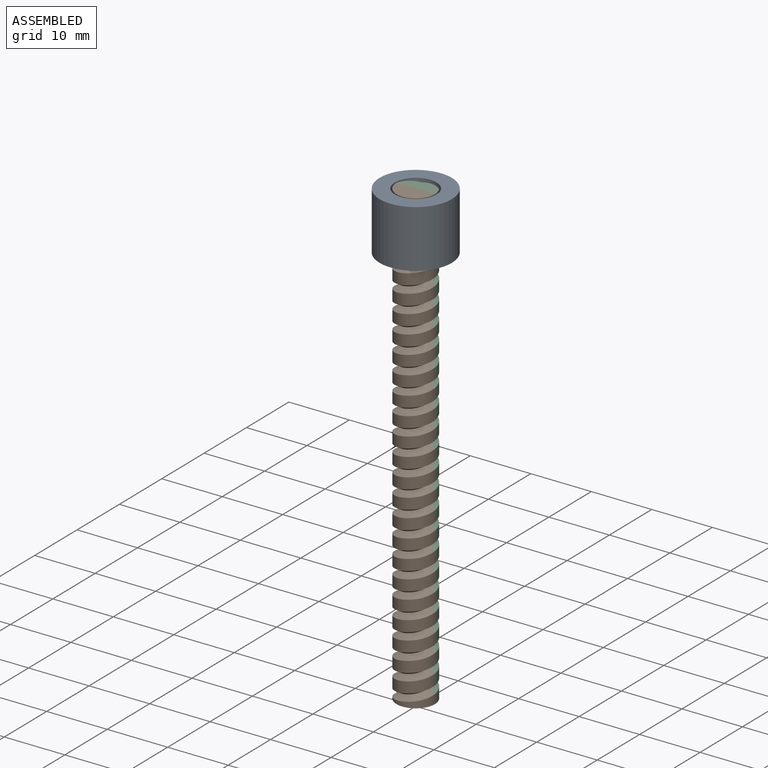
[diagram: assembled view]
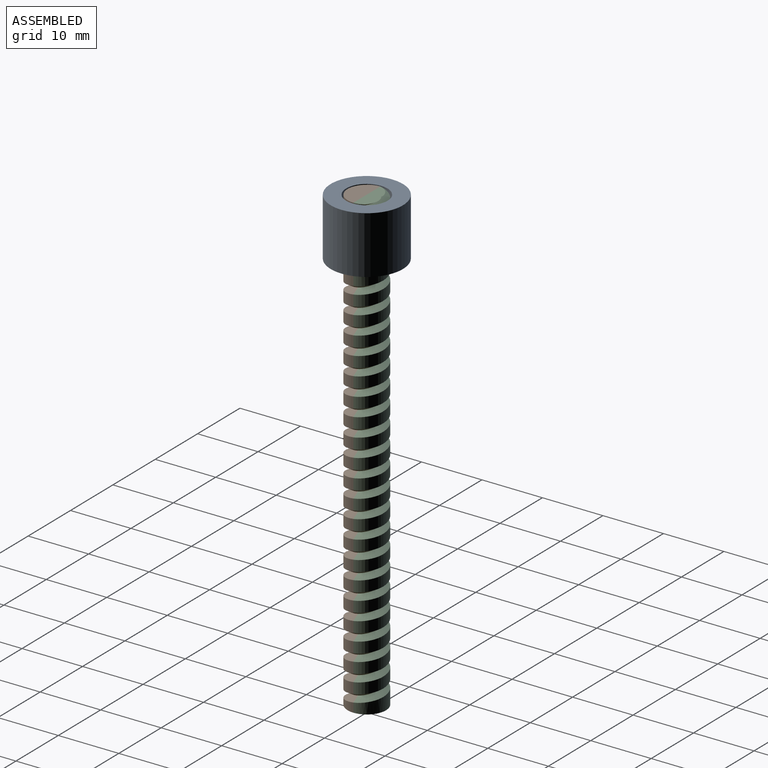
[diagram: assembled view, second angle]
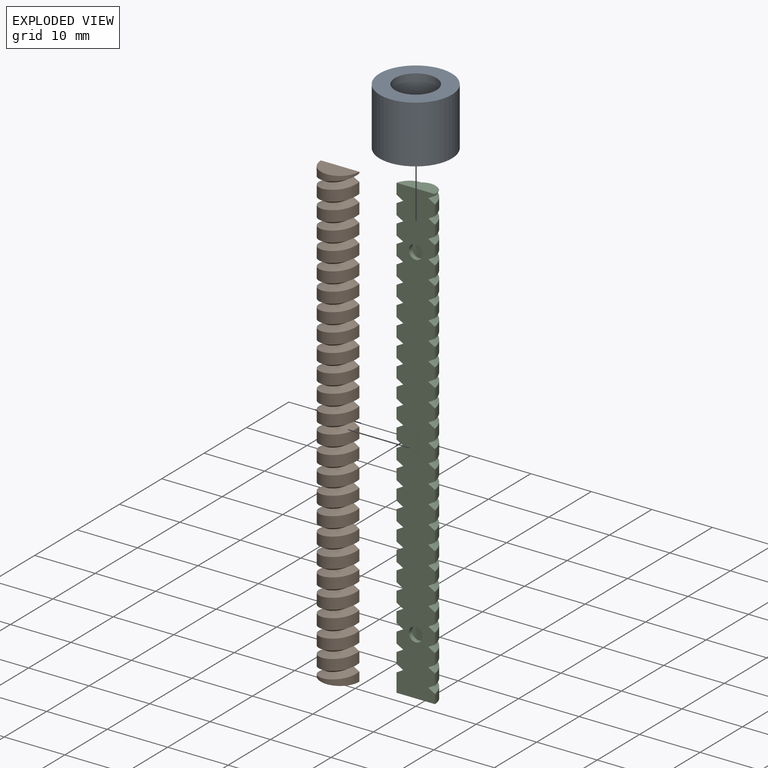
[diagram: exploded view]
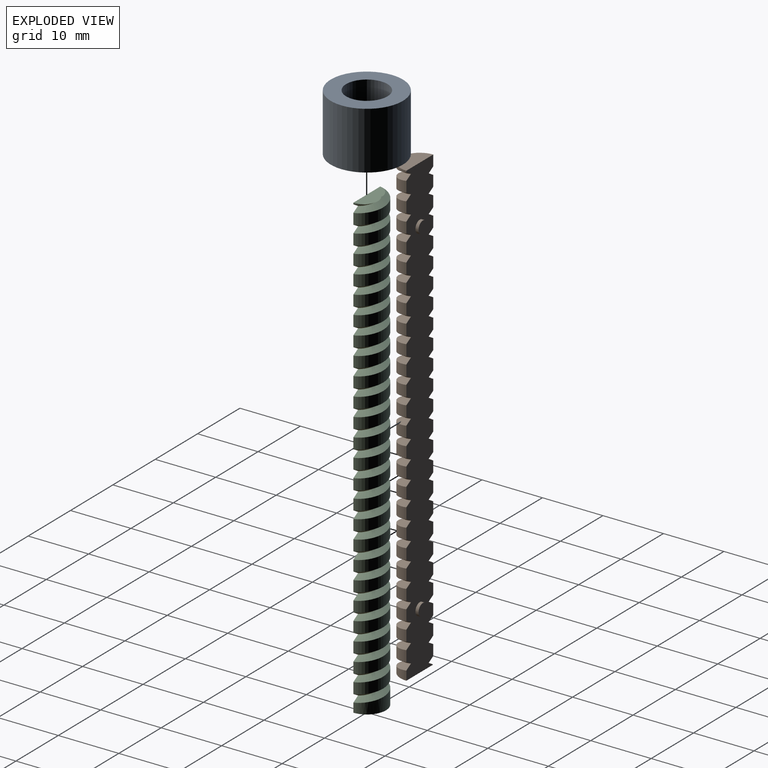
[diagram: exploded view, second angle]
ASSEMBLY  parts=3 mates=2
PART A: 4 faces, bbox 11.9x11.9x9.5 mm
  f0: cylinder r=3.43mm len=9.53mm, axis (0,0,1), area 205.2mm2, adj f2,f3
  f1: cylinder r=5.97mm len=11.94mm, axis (0,0,1), area 357.2mm2, adj f2,f3
  f2: plane 11.94x11.94mm, normal (0,0,-1), area 75mm2, adj f0,f1
  f3: plane 11.94x11.94mm, normal (0,0,1), area 75mm2, adj f0,f1
PART B: 83 faces, bbox 6.4x6.4x76.5 mm
  f0: bspline ~6.42x6.35mm, area 10.6mm2, adj f1,f75,f78
  f1: bspline ~6.42x6.35mm, area 10.6mm2, adj f0,f77,f78
  f2: bspline ~6.42x6.35mm, area 10.6mm2, adj f3,f74,f78
  f3: bspline ~6.42x6.35mm, area 10.6mm2, adj f2,f75,f78
  f4: bspline ~6.42x6.35mm, area 10.6mm2, adj f5,f73,f78
  f5: bspline ~6.42x6.35mm, area 10.6mm2, adj f4,f74,f78
  f6: bspline ~6.42x6.35mm, area 10.6mm2, adj f7,f72,f78
  f7: bspline ~6.42x6.35mm, area 10.6mm2, adj f6,f73,f78
  f8: bspline ~6.42x6.35mm, area 10.6mm2, adj f9,f71,f78
  f9: bspline ~6.42x6.35mm, area 10.6mm2, adj f8,f72,f78
  f10: bspline ~6.42x6.35mm, area 10.6mm2, adj f11,f70,f78
  f11: bspline ~6.42x6.35mm, area 10.6mm2, adj f10,f71,f78
  f12: bspline ~6.42x6.35mm, area 10.6mm2, adj f13,f69,f78
  f13: bspline ~6.42x6.35mm, area 10.6mm2, adj f12,f70,f78
  f14: bspline ~6.42x6.35mm, area 10.6mm2, adj f15,f68,f78
  f15: bspline ~6.42x6.35mm, area 10.6mm2, adj f14,f69,f78
  f16: bspline ~6.42x6.35mm, area 10.6mm2, adj f17,f67,f78
  f17: bspline ~6.42x6.35mm, area 10.6mm2, adj f16,f68,f78
  f18: bspline ~6.42x6.35mm, area 10.6mm2, adj f19,f66,f78
  f19: bspline ~6.42x6.35mm, area 10.6mm2, adj f18,f67,f78
  f20: bspline ~6.42x6.35mm, area 10.6mm2, adj f21,f65,f78
  f21: bspline ~6.42x6.35mm, area 10.6mm2, adj f20,f66,f78
  f22: bspline ~6.42x6.35mm, area 10.6mm2, adj f23,f64,f78
  f23: bspline ~6.42x6.35mm, area 10.6mm2, adj f22,f65,f78
  f24: bspline ~6.42x6.35mm, area 10.6mm2, adj f25,f63,f78
  f25: bspline ~6.42x6.35mm, area 10.6mm2, adj f24,f64,f78
  f26: bspline ~6.42x6.35mm, area 10.6mm2, adj f27,f62,f78
  f27: bspline ~6.42x6.35mm, area 10.6mm2, adj f26,f63,f78
  f28: bspline ~6.42x6.35mm, area 10.6mm2, adj f29,f61,f78
  f29: bspline ~6.42x6.35mm, area 10.6mm2, adj f28,f62,f78
  f30: bspline ~6.42x6.35mm, area 10.6mm2, adj f31,f60,f78
  f31: bspline ~6.42x6.35mm, area 10.6mm2, adj f30,f61,f78
  f32: bspline ~6.42x6.35mm, area 10.6mm2, adj f33,f59,f78
  f33: bspline ~6.42x6.35mm, area 10.6mm2, adj f32,f60,f78
  f34: bspline ~6.42x6.35mm, area 10.6mm2, adj f35,f58,f78
  f35: bspline ~6.42x6.35mm, area 10.6mm2, adj f34,f59,f78
  f36: bspline ~6.42x6.35mm, area 10.6mm2, adj f37,f57,f78
  f37: bspline ~6.42x6.35mm, area 10.6mm2, adj f36,f58,f78
  f38: bspline ~6.42x6.35mm, area 10.6mm2, adj f39,f56,f78
  f39: bspline ~6.42x6.35mm, area 10.6mm2, adj f38,f57,f78
  f40: bspline ~6.42x6.35mm, area 10.6mm2, adj f41,f55,f78
  f41: bspline ~6.42x6.35mm, area 10.6mm2, adj f40,f56,f78
  f42: bspline ~6.42x6.35mm, area 10.6mm2, adj f43,f54,f78
  f43: bspline ~6.42x6.35mm, area 10.6mm2, adj f42,f55,f78
  f44: bspline ~6.42x6.35mm, area 10.6mm2, adj f45,f53,f78
  f45: bspline ~6.42x6.35mm, area 10.6mm2, adj f44,f54,f78
  f46: bspline ~6.42x6.35mm, area 10.6mm2, adj f47,f52,f78
  f47: bspline ~6.42x6.35mm, area 10.6mm2, adj f46,f53,f78
  f48: bspline ~6.42x6.35mm, area 10.6mm2, adj f49,f51,f78
  f49: bspline ~6.42x6.35mm, area 10.6mm2, adj f48,f52,f78
  f50: plane 6.35x3.18mm, normal (0,0,1), area 15.8mm2, adj f51,f78
  f51: cylinder r=3.17mm len=6.35mm, axis (0,0,-1), area 10.1mm2, adj f48,f50,f78
  f52: cylinder r=3.17mm len=6.35mm, axis (0,0,-1), area 17.7mm2, adj f46,f49,f78
  f53: cylinder r=3.17mm len=6.35mm, axis (0,0,-1), area 17.7mm2, adj f44,f47,f78
  f54: cylinder r=3.17mm len=6.35mm, axis (0,0,-1), area 17.7mm2, adj f42,f45,f78
  f55: cylinder r=3.17mm len=6.35mm, axis (0,0,-1), area 17.7mm2, adj f40,f43,f78
  f56: cylinder r=3.17mm len=6.35mm, axis (0,0,-1), area 17.7mm2, adj f38,f41,f78
  f57: cylinder r=3.17mm len=6.35mm, axis (0,0,-1), area 17.7mm2, adj f36,f39,f78
  f58: cylinder r=3.17mm len=6.35mm, axis (0,0,-1), area 17.7mm2, adj f34,f37,f78
  f59: cylinder r=3.17mm len=6.35mm, axis (0,0,-1), area 17.7mm2, adj f32,f35,f78
  f60: cylinder r=3.17mm len=6.35mm, axis (0,0,-1), area 17.7mm2, adj f30,f33,f78
  f61: cylinder r=3.17mm len=6.35mm, axis (0,0,-1), area 17.7mm2, adj f28,f31,f78
  f62: cylinder r=3.17mm len=6.35mm, axis (0,0,-1), area 17.7mm2, adj f26,f29,f78
  f63: cylinder r=3.17mm len=6.35mm, axis (0,0,-1), area 17.7mm2, adj f24,f27,f78
  f64: cylinder r=3.17mm len=6.35mm, axis (0,0,-1), area 17.7mm2, adj f22,f25,f78
  f65: cylinder r=3.17mm len=6.35mm, axis (0,0,-1), area 17.7mm2, adj f20,f23,f78
  f66: cylinder r=3.17mm len=6.35mm, axis (0,0,-1), area 17.7mm2, adj f18,f21,f78
  f67: cylinder r=3.17mm len=6.35mm, axis (0,0,-1), area 17.7mm2, adj f16,f19,f78
  f68: cylinder r=3.17mm len=6.35mm, axis (0,0,-1), area 17.7mm2, adj f14,f17,f78
  f69: cylinder r=3.17mm len=6.35mm, axis (0,0,-1), area 17.7mm2, adj f12,f15,f78
  f70: cylinder r=3.17mm len=6.35mm, axis (0,0,-1), area 17.7mm2, adj f10,f13,f78
  f71: cylinder r=3.17mm len=6.35mm, axis (0,0,-1), area 17.7mm2, adj f8,f11,f78
  f72: cylinder r=3.17mm len=6.35mm, axis (0,0,-1), area 17.7mm2, adj f6,f9,f78
  f73: cylinder r=3.17mm len=6.35mm, axis (0,0,-1), area 17.7mm2, adj f4,f7,f78
  f74: cylinder r=3.17mm len=6.35mm, axis (0,0,-1), area 17.7mm2, adj f2,f5,f78
  f75: cylinder r=3.17mm len=6.35mm, axis (0,0,-1), area 17.7mm2, adj f0,f3,f78
  f76: plane 6.35x3.18mm, normal (0,0,-1), area 15.8mm2, adj f77,f78
  f77: cylinder r=3.17mm len=6.35mm, axis (0,0,-1), area 7.6mm2, adj f1,f76,f78
  f78: plane 76.2x6.35mm, normal (0,1,0), area 442.5mm2, adj f0,f1,f2,f3,f4,f5,f6,f7
  f79: cylinder r=1.02mm len=2.03mm, axis (0,-1,0), area 3.2mm2, adj f78,f80
  f80: plane 2.03x2.03mm, normal (0,1,0), area 3.2mm2, adj f79
  f81: cylinder r=1.02mm len=2.03mm, axis (0,-1,0), area 3.2mm2, adj f78,f82
  f82: plane 2.03x2.03mm, normal (0,1,0), area 3.2mm2, adj f81
PART C: 83 faces, bbox 6.7x6.8x77.3 mm
  f0: cylinder r=3.17mm len=6.35mm, axis (0,0,-1), area 17.7mm2, adj f28,f54,f78
  f1: cylinder r=3.17mm len=6.35mm, axis (0,0,-1), area 17.7mm2, adj f29,f55,f78
  f2: cylinder r=3.17mm len=6.35mm, axis (0,0,-1), area 17.7mm2, adj f30,f56,f78
  f3: cylinder r=3.17mm len=6.35mm, axis (0,0,-1), area 17.7mm2, adj f31,f57,f78
  f4: cylinder r=3.17mm len=6.35mm, axis (0,0,-1), area 17.7mm2, adj f32,f58,f78
  f5: cylinder r=3.17mm len=6.35mm, axis (0,0,-1), area 17.7mm2, adj f33,f59,f78
  f6: cylinder r=3.17mm len=6.35mm, axis (0,0,-1), area 17.7mm2, adj f34,f60,f78
  f7: cylinder r=3.17mm len=6.35mm, axis (0,0,-1), area 17.7mm2, adj f35,f61,f78
  f8: cylinder r=3.17mm len=6.35mm, axis (0,0,-1), area 17.7mm2, adj f36,f62,f78
  f9: cylinder r=3.17mm len=6.35mm, axis (0,0,-1), area 17.7mm2, adj f37,f63,f78
  f10: cylinder r=3.17mm len=6.35mm, axis (0,0,-1), area 17.7mm2, adj f38,f64,f78
  f11: cylinder r=3.17mm len=6.35mm, axis (0,0,-1), area 17.7mm2, adj f39,f65,f78
  f12: cylinder r=3.17mm len=6.35mm, axis (0,0,-1), area 17.7mm2, adj f40,f66,f78
  f13: cylinder r=3.17mm len=6.35mm, axis (0,0,-1), area 17.7mm2, adj f41,f67,f78
  f14: cylinder r=3.17mm len=6.35mm, axis (0,0,-1), area 17.7mm2, adj f42,f68,f78
  f15: cylinder r=3.17mm len=6.35mm, axis (0,0,-1), area 17.7mm2, adj f43,f69,f78
  f16: cylinder r=3.17mm len=6.35mm, axis (0,0,-1), area 17.7mm2, adj f44,f70,f78
  f17: cylinder r=3.17mm len=6.35mm, axis (0,0,-1), area 17.7mm2, adj f45,f71,f78
  f18: cylinder r=3.17mm len=6.35mm, axis (0,0,-1), area 17.7mm2, adj f46,f72,f78
  f19: cylinder r=3.17mm len=6.35mm, axis (0,0,-1), area 17.7mm2, adj f47,f73,f78
  f20: cylinder r=3.17mm len=6.35mm, axis (0,0,-1), area 17.7mm2, adj f48,f74,f78
  f21: cylinder r=3.17mm len=6.35mm, axis (0,0,-1), area 17.7mm2, adj f49,f75,f78
  f22: cylinder r=3.17mm len=6.35mm, axis (0,0,-1), area 17.7mm2, adj f50,f76,f78
  f23: cylinder r=3.17mm len=6.35mm, axis (0,0,-1), area 17.7mm2, adj f51,f77,f78
  f24: cylinder r=3.17mm len=6.35mm, axis (0,0,-1), area 22.8mm2, adj f27,f52,f78
  f25: cylinder r=3.17mm len=1.59mm, axis (0,0,-1), area 0.2mm2, adj f26,f53,f78
  f26: plane 6.73x2.83mm, normal (0,0,1), area 11.8mm2, adj f25,f28,f53,f78
  f27: plane 6.35x3.18mm, normal (0,0,-1), area 15.8mm2, adj f24,f78
  f28: bspline ~6.42x6.35mm, area 8.5mm2, adj f0,f26,f53,f78
  f29: bspline ~6.42x6.35mm, area 10.6mm2, adj f1,f54,f78
  f30: bspline ~6.42x6.35mm, area 10.6mm2, adj f2,f55,f78
  f31: bspline ~6.42x6.35mm, area 10.6mm2, adj f3,f56,f78
  f32: bspline ~6.42x6.35mm, area 10.6mm2, adj f4,f57,f78
  f33: bspline ~6.42x6.35mm, area 10.6mm2, adj f5,f58,f78
  f34: bspline ~6.42x6.35mm, area 10.6mm2, adj f6,f59,f78
  f35: bspline ~6.42x6.35mm, area 10.6mm2, adj f7,f60,f78
  f36: bspline ~6.42x6.35mm, area 10.6mm2, adj f8,f61,f78
  f37: bspline ~6.42x6.35mm, area 10.6mm2, adj f9,f62,f78
  f38: bspline ~6.42x6.35mm, area 10.6mm2, adj f10,f63,f78
  f39: bspline ~6.42x6.35mm, area 10.6mm2, adj f11,f64,f78
  f40: bspline ~6.42x6.35mm, area 10.6mm2, adj f12,f65,f78
  f41: bspline ~6.42x6.35mm, area 10.6mm2, adj f13,f66,f78
  f42: bspline ~6.42x6.35mm, area 10.6mm2, adj f14,f67,f78
  f43: bspline ~6.42x6.35mm, area 10.6mm2, adj f15,f68,f78
  f44: bspline ~6.42x6.35mm, area 10.6mm2, adj f16,f69,f78
  f45: bspline ~6.42x6.35mm, area 10.6mm2, adj f17,f70,f78
  f46: bspline ~6.42x6.35mm, area 10.6mm2, adj f18,f71,f78
  f47: bspline ~6.42x6.35mm, area 10.6mm2, adj f19,f72,f78
  f48: bspline ~6.42x6.35mm, area 10.6mm2, adj f20,f73,f78
  f49: bspline ~6.42x6.35mm, area 10.6mm2, adj f21,f74,f78
  f50: bspline ~6.42x6.35mm, area 10.6mm2, adj f22,f75,f78
  f51: bspline ~6.42x6.35mm, area 10.6mm2, adj f23,f76,f78
  f52: bspline ~6.42x6.35mm, area 10.6mm2, adj f24,f77,f78
  f53: bspline ~4.76x3.67mm, area 3.8mm2, adj f25,f26,f28,f78
  f54: bspline ~6.42x6.35mm, area 10.6mm2, adj f0,f29,f78
  f55: bspline ~6.42x6.35mm, area 10.6mm2, adj f1,f30,f78
  f56: bspline ~6.42x6.35mm, area 10.6mm2, adj f2,f31,f78
  f57: bspline ~6.42x6.35mm, area 10.6mm2, adj f3,f32,f78
  f58: bspline ~6.42x6.35mm, area 10.6mm2, adj f4,f33,f78
  f59: bspline ~6.42x6.35mm, area 10.6mm2, adj f5,f34,f78
  f60: bspline ~6.42x6.35mm, area 10.6mm2, adj f6,f35,f78
  f61: bspline ~6.42x6.35mm, area 10.6mm2, adj f7,f36,f78
  f62: bspline ~6.42x6.35mm, area 10.6mm2, adj f8,f37,f78
  f63: bspline ~6.42x6.35mm, area 10.6mm2, adj f9,f38,f78
  f64: bspline ~6.42x6.35mm, area 10.6mm2, adj f10,f39,f78
  f65: bspline ~6.42x6.35mm, area 10.6mm2, adj f11,f40,f78
  f66: bspline ~6.42x6.35mm, area 10.6mm2, adj f12,f41,f78
  f67: bspline ~6.42x6.35mm, area 10.6mm2, adj f13,f42,f78
  f68: bspline ~6.42x6.35mm, area 10.6mm2, adj f14,f43,f78
  f69: bspline ~6.42x6.35mm, area 10.6mm2, adj f15,f44,f78
  f70: bspline ~6.42x6.35mm, area 10.6mm2, adj f16,f45,f78
  f71: bspline ~6.42x6.35mm, area 10.6mm2, adj f17,f46,f78
  f72: bspline ~6.42x6.35mm, area 10.6mm2, adj f18,f47,f78
  f73: bspline ~6.42x6.35mm, area 10.6mm2, adj f19,f48,f78
  f74: bspline ~6.42x6.35mm, area 10.6mm2, adj f20,f49,f78
  f75: bspline ~6.42x6.35mm, area 10.6mm2, adj f21,f50,f78
  f76: bspline ~6.42x6.35mm, area 10.6mm2, adj f22,f51,f78
  f77: bspline ~6.42x6.35mm, area 10.6mm2, adj f23,f52,f78
  f78: plane 76.2x6.35mm, normal (0,-1,0), area 441.4mm2, adj f0,f1,f2,f3,f4,f5,f6,f7
  f79: cylinder r=1.14mm len=2.29mm, axis (0,-1,0), area 5.5mm2, adj f78,f80
  f80: plane 2.29x2.29mm, normal (0,-1,0), area 4.1mm2, adj f79
  f81: cylinder r=1.14mm len=2.29mm, axis (0,-1,0), area 5.5mm2, adj f78,f82
  f82: plane 2.29x2.29mm, normal (0,-1,0), area 4.1mm2, adj f81
PLACE A rot(axis=(0,0,1),0.6deg) t=(0,0,0)mm
PLACE B at identity
PLACE C at identity
MATE cylindrical A.f1 <-> C.f0  axis (0,0,1) through (0,0,76.2)mm
MATE fastened C.f79 <-> B.f81  axis (0,-1,0) through (0,0,9.53)mm
